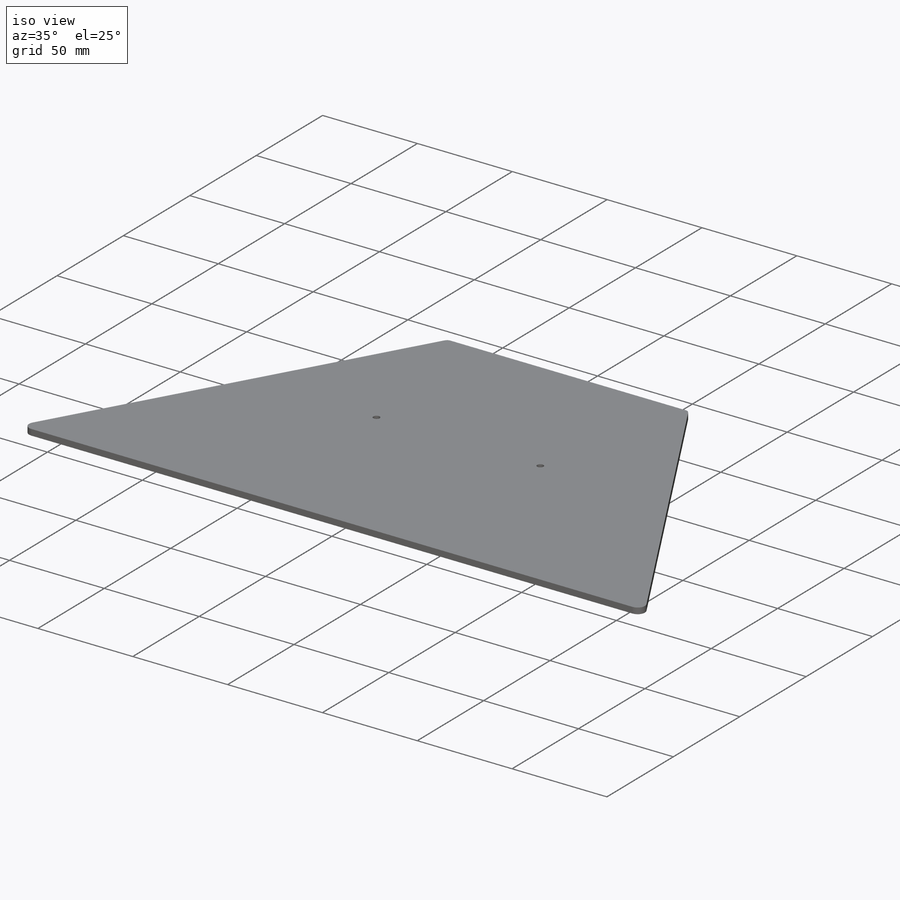
[diagram: iso view]
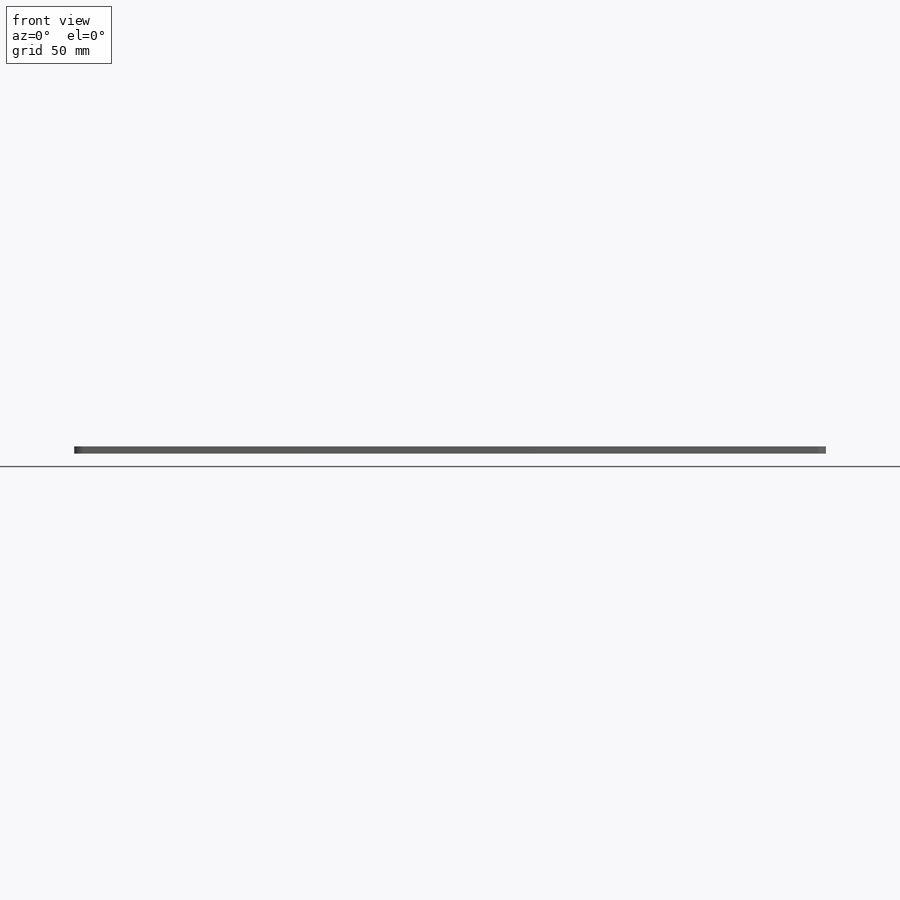
[diagram: front view]
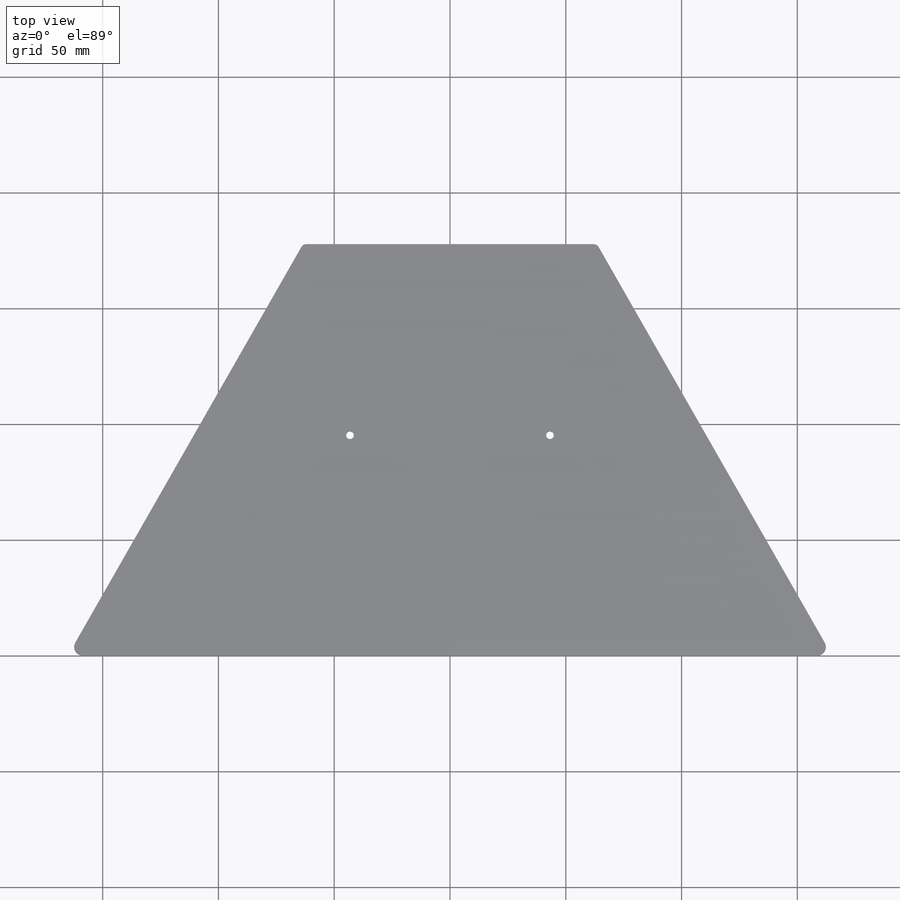
[diagram: top view]
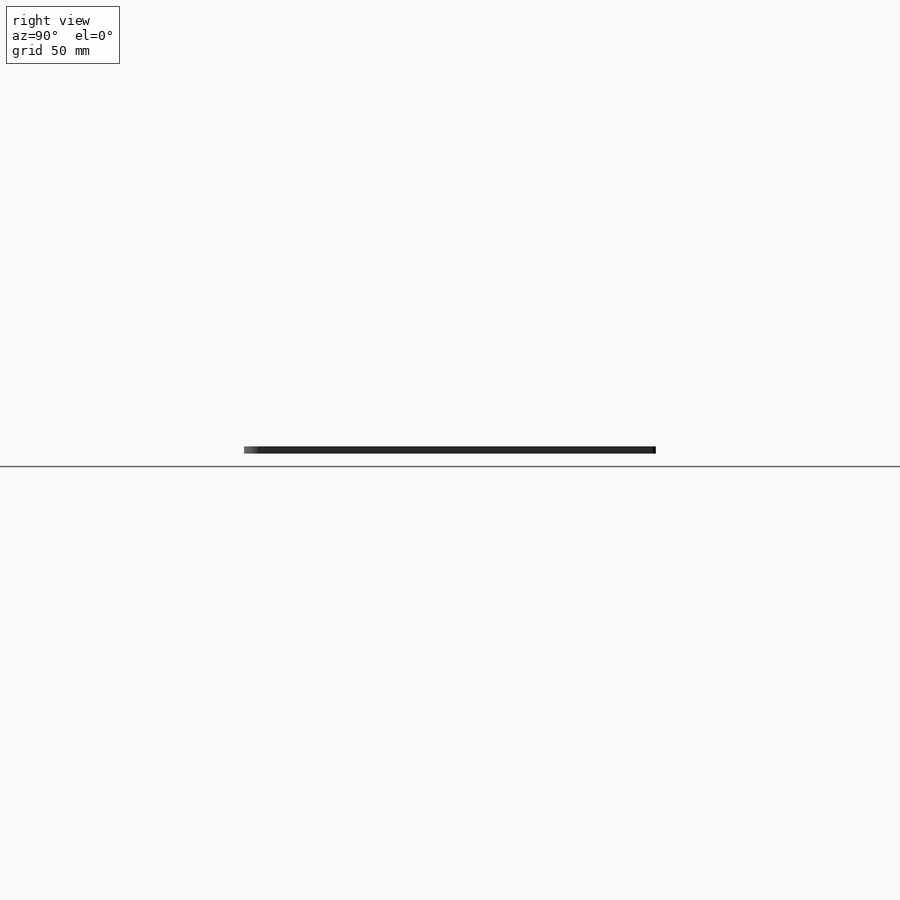
[diagram: right view]
SOLIDWORKS PART (.sldprt)
format: sldprt  version: not decoded by parser v0  size: 138,240 bytes
history: native  units: mm
features: sketch x2, mirror x2, fillet x2, material x1, extrude x1, cut_extrude x1 (+16 scaffold rows collapsed)
feature tree (25):
  scaffold x16  (default folders/planes/origin — collapsed)
  material  "Material <not specified>"
  sketch  "Sketch1"  dims[D1=165.1mm D2=177.8mm]
  extrude  "Boss-Extrude1"  Depth=3.175mm
  mirror  "Mirror1"
  fillet  "Fillet1"  Radius=3.81mm
  fillet  "Fillet2"  Radius=2.54mm
  sketch  "Sketch2"  dims[c1.D1=3.302mm c1.D3=3.302mm c1.D2=95.25mm c2.D3=43.18mm]
  cut_extrude  "Cut-Extrude1"  [1 undecoded]
  mirror  "Mirror2"
decode coverage: 5 of 8 modeling features carry decoded parameters
note: 1 parameter value undecoded
note: suppression state not decoded; provenance and decode notes live in map.json
